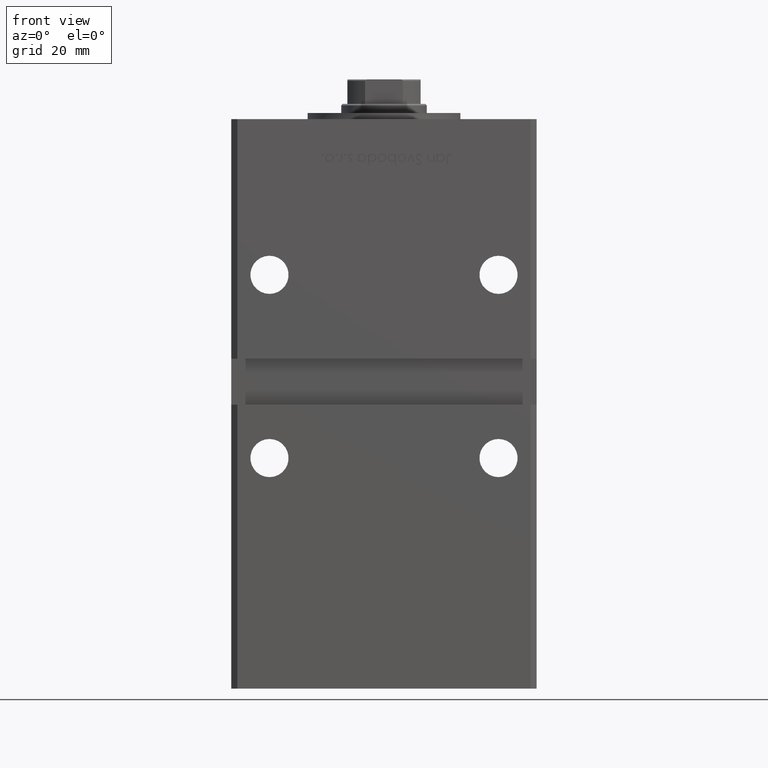
[diagram: clean part render]
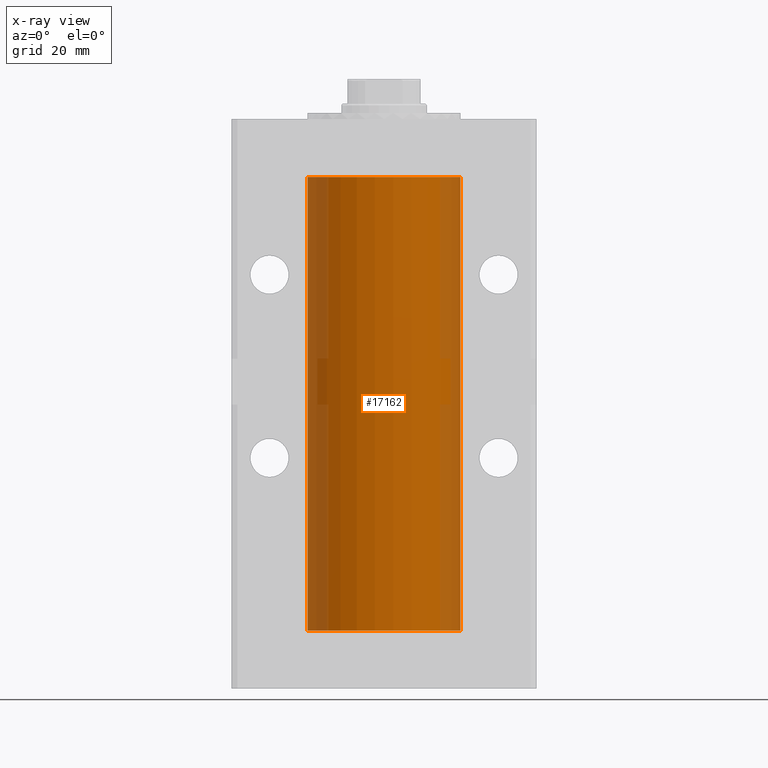
[diagram: x-ray — body ghosted, one internal face saturated and labeled with its STEP entity id]
A machine part, front view, then the same camera in x-ray: the body is ghosted and one INTERNAL B-rep face — a face not visible from any outside direction — is saturated and labeled: STEP entity #17162.
In plain terms, the highlighted cylindrical surface (partial cylindrical patch) has radius 25 mm, axis along (-0, -0, -1).
Its self-contained STEP definition (entity closure, byte-faithful):
#201 = DIRECTION ( 'NONE',  ( -0.000000000000000000, -0.000000000000000000, -1.000000000000000000 ) ) ;
#1492 = EDGE_CURVE ( 'NONE', #50269, #20289, #41894, .T. ) ;
#1501 = ORIENTED_EDGE ( 'NONE', *, *, #1492, .T. ) ;
#2335 = AXIS2_PLACEMENT_3D ( 'NONE', #16588, #201, #23611 ) ;
#2530 = EDGE_CURVE ( 'NONE', #45846, #20289, #50202, .T. ) ;
#6228 = DIRECTION ( 'NONE',  ( -0.000000000000000000, 0.000000000000000000, 1.000000000000000000 ) ) ;
#7032 = CARTESIAN_POINT ( 'NONE',  ( 0.000000000000000000, 0.000000000000000000, 0.000000000000000000 ) ) ;
#9553 = ORIENTED_EDGE ( 'NONE', *, *, #2530, .F. ) ;
#12484 = EDGE_CURVE ( 'NONE', #42697, #50269, #26253, .T. ) ;
#12568 = CYLINDRICAL_SURFACE ( 'NONE', #2335, 25.00000000000000000 ) ;
#13624 = CARTESIAN_POINT ( 'NONE',  ( -25.00000000000000000, 0.000000000000000000, 0.000000000000000000 ) ) ;
#15365 = LINE ( 'NONE', #29589, #16313 ) ;
#16313 = VECTOR ( 'NONE', #17471, 1000.000000000000000 ) ;
#16588 = CARTESIAN_POINT ( 'NONE',  ( 0.000000000000000000, 0.000000000000000000, 148.5000000000000000 ) ) ;
#17162 = ADVANCED_FACE ( 'NONE', ( #20631 ), #12568, .F. ) ;
#17463 = DIRECTION ( 'NONE',  ( -0.000000000000000000, 0.000000000000000000, 1.000000000000000000 ) ) ;
#17471 = DIRECTION ( 'NONE',  ( -0.000000000000000000, -0.000000000000000000, -1.000000000000000000 ) ) ;
#17988 = CARTESIAN_POINT ( 'NONE',  ( 0.000000000000000000, 0.000000000000000000, 148.5000000000000000 ) ) ;
#20289 = VERTEX_POINT ( 'NONE', #49346 ) ;
#20631 = FACE_OUTER_BOUND ( 'NONE', #34322, .T. ) ;
#21481 = ORIENTED_EDGE ( 'NONE', *, *, #28361, .F. ) ;
#21674 = CARTESIAN_POINT ( 'NONE',  ( 25.00000000000000000, 3.061616997868383043E-15, 148.5000000000000000 ) ) ;
#22482 = CARTESIAN_POINT ( 'NONE',  ( 25.00000000000000000, 3.061616997868383043E-15, 148.5000000000000000 ) ) ;
#23611 = DIRECTION ( 'NONE',  ( -1.000000000000000000, 0.000000000000000000, 0.000000000000000000 ) ) ;
#25783 = CARTESIAN_POINT ( 'NONE',  ( -25.00000000000000000, 0.000000000000000000, 148.5000000000000000 ) ) ;
#26253 = CIRCLE ( 'NONE', #42603, 25.00000000000000000 ) ;
#28361 = EDGE_CURVE ( 'NONE', #42697, #45846, #15365, .T. ) ;
#29589 = CARTESIAN_POINT ( 'NONE',  ( -25.00000000000000000, 0.000000000000000000, 148.5000000000000000 ) ) ;
#29731 = ORIENTED_EDGE ( 'NONE', *, *, #12484, .T. ) ;
#33010 = AXIS2_PLACEMENT_3D ( 'NONE', #7032, #6228, #51188 ) ;
#34322 = EDGE_LOOP ( 'NONE', ( #29731, #1501, #9553, #21481 ) ) ;
#36407 = VECTOR ( 'NONE', #45405, 1000.000000000000000 ) ;
#38721 = DIRECTION ( 'NONE',  ( 1.000000000000000000, 0.000000000000000000, 0.000000000000000000 ) ) ;
#41894 = LINE ( 'NONE', #21674, #36407 ) ;
#42603 = AXIS2_PLACEMENT_3D ( 'NONE', #17988, #17463, #38721 ) ;
#42697 = VERTEX_POINT ( 'NONE', #25783 ) ;
#45405 = DIRECTION ( 'NONE',  ( -0.000000000000000000, -0.000000000000000000, -1.000000000000000000 ) ) ;
#45846 = VERTEX_POINT ( 'NONE', #13624 ) ;
#49346 = CARTESIAN_POINT ( 'NONE',  ( 25.00000000000000000, 3.061616997868383043E-15, 0.000000000000000000 ) ) ;
#50202 = CIRCLE ( 'NONE', #33010, 25.00000000000000000 ) ;
#50269 = VERTEX_POINT ( 'NONE', #22482 ) ;
#51188 = DIRECTION ( 'NONE',  ( 1.000000000000000000, 0.000000000000000000, 0.000000000000000000 ) ) ;